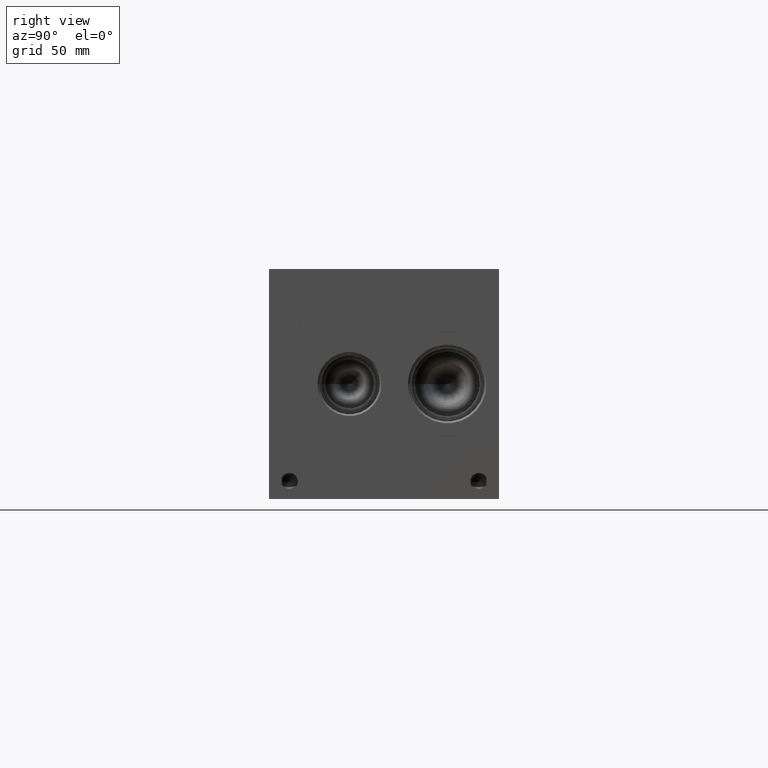
[diagram: clean part render]
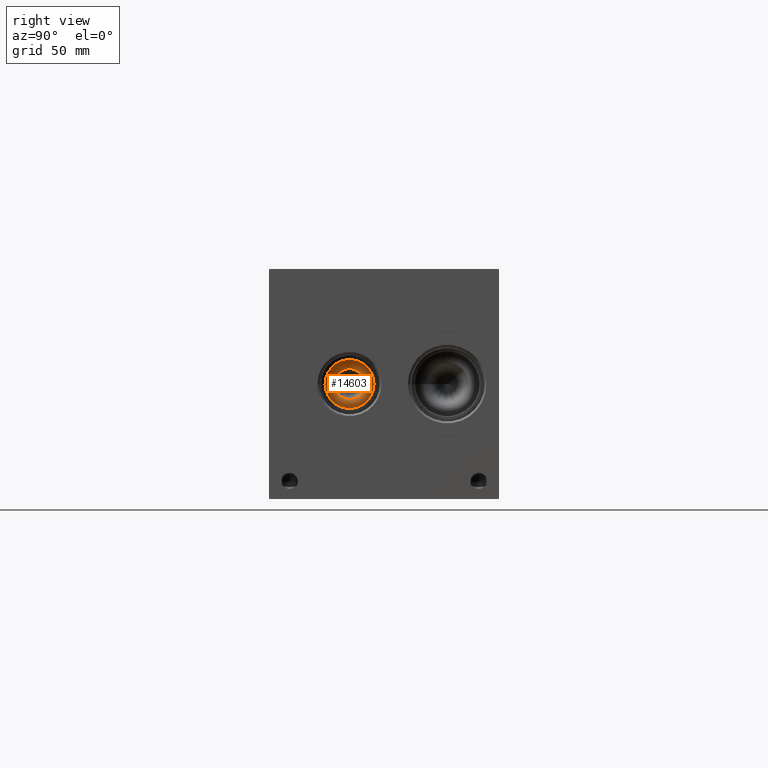
[diagram: same view with one face highlighted and labeled with its STEP entity id]
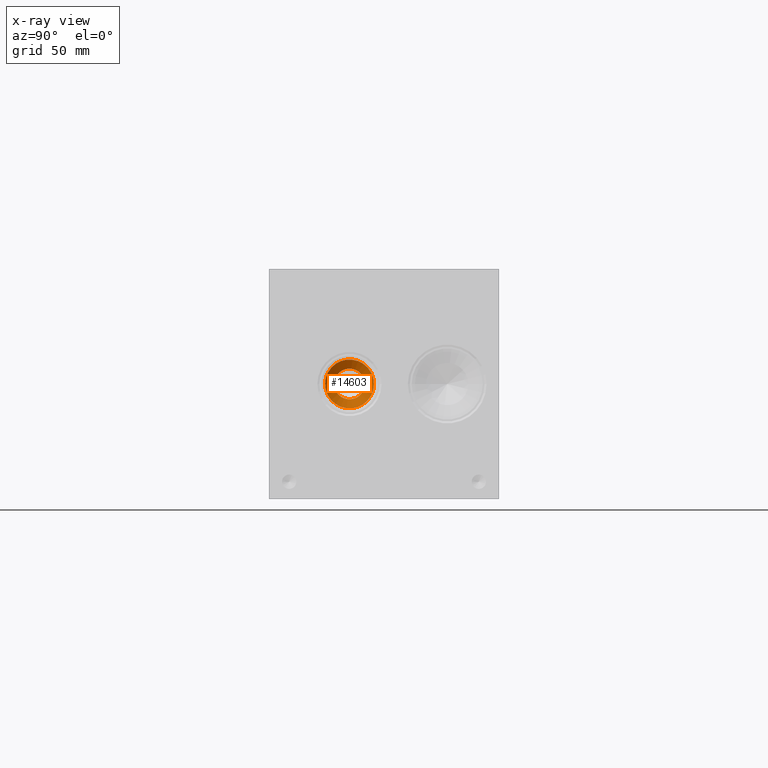
[diagram: x-ray of the same camera — body ghosted, the highlighted face saturated]
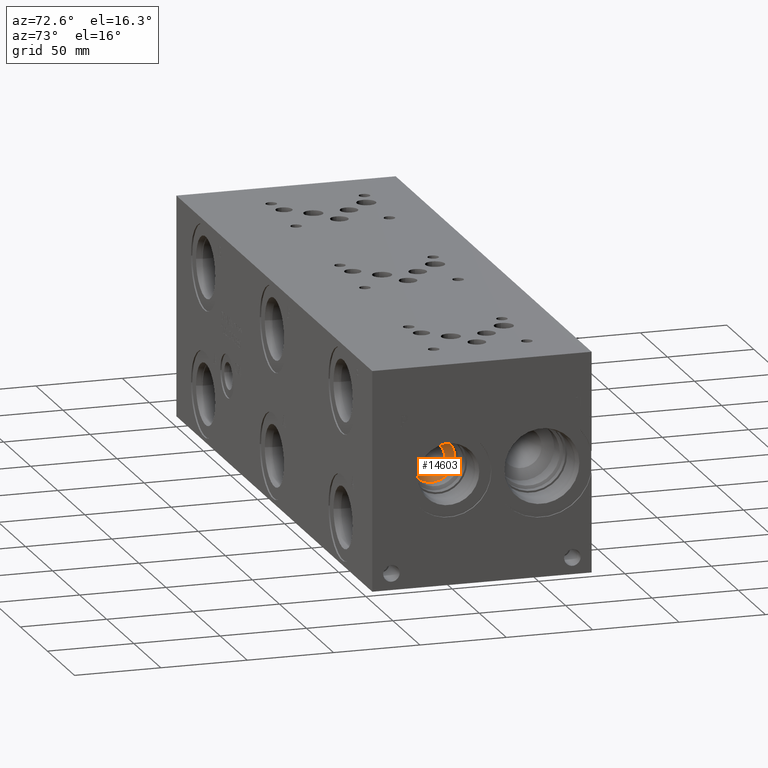
[diagram: same view with one face highlighted and labeled with its STEP entity id]
A machine part, right view. The second image highlights one B-rep face of the part: STEP entity #14603.
The next image is the same camera in x-ray: the body ghosted, the highlighted face saturated — about 0% of this face is hidden behind the body in this view.
A second angle (auxiliary view) of the same face is appended — the face is thin or edge-on in the first view.
In plain terms, the highlighted conical surface has half-angle 60 deg.
Its self-contained STEP definition (entity closure, byte-faithful):
#125=CONICAL_SURFACE('',#15246,6.75005,1.0471975511966);
#248=CIRCLE('',#15247,13.5001);
#249=CIRCLE('',#15248,8.46947359152587);
#250=CIRCLE('',#15249,13.5001);
#1828=FACE_OUTER_BOUND('',#2666,.T.);
#2666=EDGE_LOOP('',(#12026,#12027,#12028,#12029,#12030));
#4065=LINE('',#24591,#5364);
#5364=VECTOR('',#17743,6.75005);
#6579=VERTEX_POINT('',#24587);
#6580=VERTEX_POINT('',#24588);
#6581=VERTEX_POINT('',#24590);
#8492=EDGE_CURVE('',#6579,#6580,#248,.T.);
#8493=EDGE_CURVE('',#6580,#6581,#4065,.T.);
#8494=EDGE_CURVE('',#6581,#6581,#249,.T.);
#8495=EDGE_CURVE('',#6580,#6579,#250,.T.);
#12026=ORIENTED_EDGE('',*,*,#8492,.T.);
#12027=ORIENTED_EDGE('',*,*,#8493,.T.);
#12028=ORIENTED_EDGE('',*,*,#8494,.F.);
#12029=ORIENTED_EDGE('',*,*,#8493,.F.);
#12030=ORIENTED_EDGE('',*,*,#8495,.T.);
#14603=ADVANCED_FACE('',(#1828),#125,.F.);
#15246=AXIS2_PLACEMENT_3D('',#24586,#17739,#17740);
#15247=AXIS2_PLACEMENT_3D('',#24589,#17741,#17742);
#15248=AXIS2_PLACEMENT_3D('',#24592,#17744,#17745);
#15249=AXIS2_PLACEMENT_3D('',#24593,#17746,#17747);
#17739=DIRECTION('center_axis',(1.,0.,0.));
#17740=DIRECTION('ref_axis',(0.,1.,0.));
#17741=DIRECTION('center_axis',(1.,0.,0.));
#17742=DIRECTION('ref_axis',(0.,1.,0.));
#17743=DIRECTION('',(-0.5,0.866025403784439,1.06057523872491E-16));
#17744=DIRECTION('center_axis',(1.,0.,0.));
#17745=DIRECTION('ref_axis',(0.,1.,0.));
#17746=DIRECTION('center_axis',(1.,0.,0.));
#17747=DIRECTION('ref_axis',(0.,1.,0.));
#24586=CARTESIAN_POINT('Origin',(325.509796815457,44.45,63.5));
#24587=CARTESIAN_POINT('',(329.40694,57.9501,63.5));
#24588=CARTESIAN_POINT('',(329.40694,30.9499,63.5));
#24589=CARTESIAN_POINT('Origin',(329.40694,44.45,63.5));
#24590=CARTESIAN_POINT('',(326.502506488875,35.9805264084741,63.5));
#24591=CARTESIAN_POINT('',(325.509796815457,37.69995,63.5));
#24592=CARTESIAN_POINT('Origin',(326.502506488875,44.45,63.5));
#24593=CARTESIAN_POINT('Origin',(329.40694,44.45,63.5));